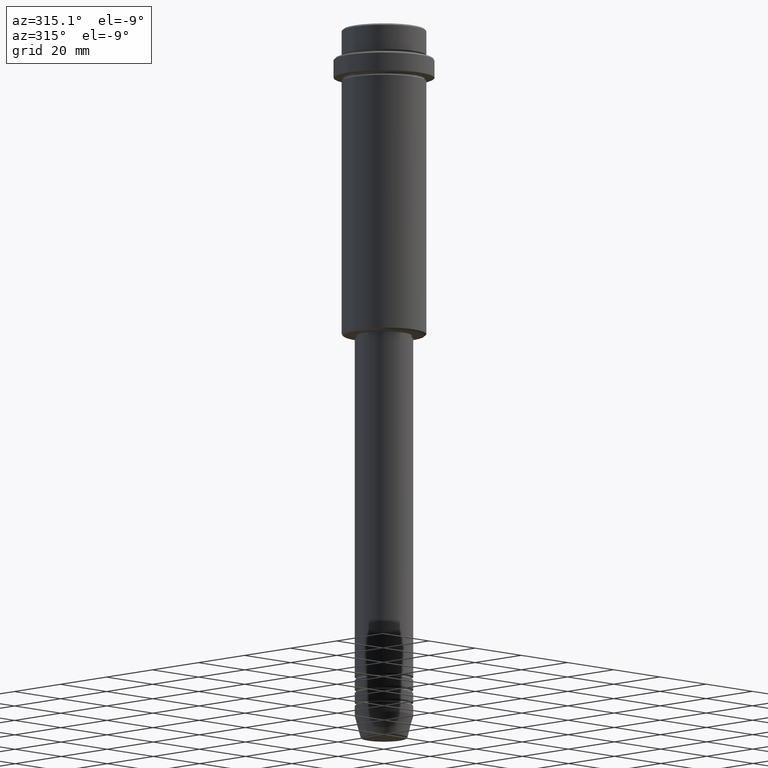
[diagram: clean part render]
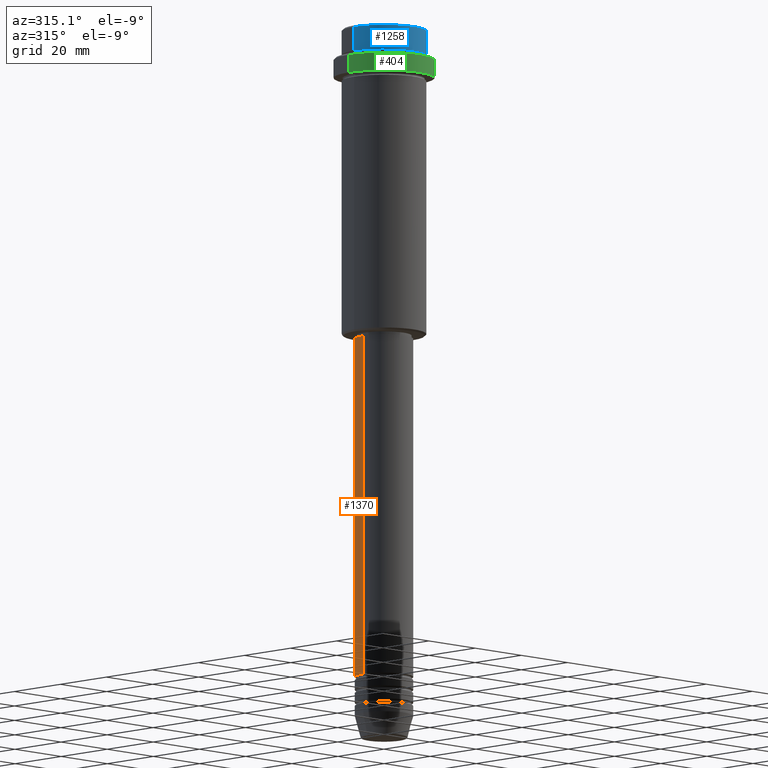
[diagram: same view with three faces highlighted in distinct colors, each labeled with its STEP entity id]
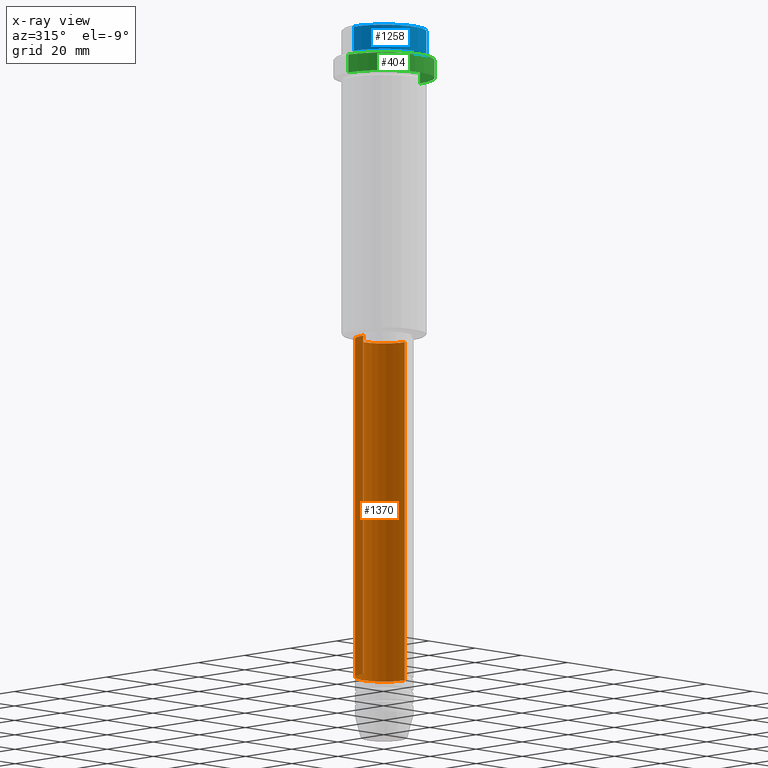
[diagram: x-ray of the same camera — body ghosted, the three highlighted faces saturated]
A machine part, auxiliary view with three faces highlighted in distinct colors.
The next image is the same camera in x-ray (body ghosted, the three faces saturated) — at least one of them is partly hidden behind the body in this view.
Their STEP definitions:

[orange] entity #1370 — the highlighted cylindrical surface (edge-blend (fillet) strip) has radius 9 mm, axis along (-0, -0, 1).
#2 = DIRECTION ( 'NONE',  ( -0.000000000000000000, -0.000000000000000000, 1.000000000000000000 ) ) ;
#33 = CIRCLE ( 'NONE', #165, 9.000000000000000000 ) ;
#70 = DIRECTION ( 'NONE',  ( 1.000000000000000000, 0.000000000000000000, 0.000000000000000000 ) ) ;
#121 = CARTESIAN_POINT ( 'NONE',  ( -9.000000000000000000, 1.102182119232617714E-15, -200.9999999999998579 ) ) ;
#130 = ORIENTED_EDGE ( 'NONE', *, *, #1390, .T. ) ;
#134 = ORIENTED_EDGE ( 'NONE', *, *, #992, .F. ) ;
#165 = AXIS2_PLACEMENT_3D ( 'NONE', #357, #2, #1332 ) ;
#185 = CARTESIAN_POINT ( 'NONE',  ( -9.000000000000001776, 1.102182119232617911E-15, -95.99999999999997158 ) ) ;
#188 = EDGE_CURVE ( 'NONE', #1054, #1299, #388, .T. ) ;
#193 = DIRECTION ( 'NONE',  ( -0.000000000000000000, -0.000000000000000000, 1.000000000000000000 ) ) ;
#281 = CARTESIAN_POINT ( 'NONE',  ( 0.000000000000000000, 0.000000000000000000, -95.99999999999997158 ) ) ;
#350 = CARTESIAN_POINT ( 'NONE',  ( 9.000000000000000000, 0.000000000000000000, -200.9999999999998579 ) ) ;
#356 = DIRECTION ( 'NONE',  ( -0.000000000000000000, -0.000000000000000000, 1.000000000000000000 ) ) ;
#357 = CARTESIAN_POINT ( 'NONE',  ( 0.000000000000000000, 0.000000000000000000, -200.9999999999998579 ) ) ;
#388 = LINE ( 'NONE', #608, #568 ) ;
#458 = FACE_OUTER_BOUND ( 'NONE', #683, .T. ) ;
#555 = ORIENTED_EDGE ( 'NONE', *, *, #834, .F. ) ;
#559 = CYLINDRICAL_SURFACE ( 'NONE', #600, 9.000000000000001776 ) ;
#568 = VECTOR ( 'NONE', #356, 1000.000000000000000 ) ;
#600 = AXIS2_PLACEMENT_3D ( 'NONE', #689, #1339, #1201 ) ;
#608 = CARTESIAN_POINT ( 'NONE',  ( -9.000000000000001776, 1.102182119232617911E-15, 0.000000000000000000 ) ) ;
#667 = VECTOR ( 'NONE', #962, 1000.000000000000000 ) ;
#683 = EDGE_LOOP ( 'NONE', ( #130, #1261, #555, #134 ) ) ;
#689 = CARTESIAN_POINT ( 'NONE',  ( 0.000000000000000000, 0.000000000000000000, 0.000000000000000000 ) ) ;
#739 = CIRCLE ( 'NONE', #1075, 9.000000000000001776 ) ;
#834 = EDGE_CURVE ( 'NONE', #987, #1299, #739, .T. ) ;
#882 = CARTESIAN_POINT ( 'NONE',  ( 9.000000000000001776, 0.000000000000000000, 0.000000000000000000 ) ) ;
#962 = DIRECTION ( 'NONE',  ( -0.000000000000000000, -0.000000000000000000, 1.000000000000000000 ) ) ;
#987 = VERTEX_POINT ( 'NONE', #994 ) ;
#992 = EDGE_CURVE ( 'NONE', #1403, #987, #1324, .T. ) ;
#994 = CARTESIAN_POINT ( 'NONE',  ( 9.000000000000001776, 0.000000000000000000, -95.99999999999997158 ) ) ;
#1054 = VERTEX_POINT ( 'NONE', #121 ) ;
#1075 = AXIS2_PLACEMENT_3D ( 'NONE', #281, #193, #70 ) ;
#1201 = DIRECTION ( 'NONE',  ( 1.000000000000000000, 0.000000000000000000, 0.000000000000000000 ) ) ;
#1261 = ORIENTED_EDGE ( 'NONE', *, *, #188, .T. ) ;
#1299 = VERTEX_POINT ( 'NONE', #185 ) ;
#1324 = LINE ( 'NONE', #882, #667 ) ;
#1332 = DIRECTION ( 'NONE',  ( 1.000000000000000000, 0.000000000000000000, 0.000000000000000000 ) ) ;
#1339 = DIRECTION ( 'NONE',  ( -0.000000000000000000, -0.000000000000000000, 1.000000000000000000 ) ) ;
#1370 = ADVANCED_FACE ( 'NONE', ( #458 ), #559, .T. ) ;
#1390 = EDGE_CURVE ( 'NONE', #1403, #1054, #33, .T. ) ;
#1403 = VERTEX_POINT ( 'NONE', #350 ) ;

[blue] entity #1258 — the highlighted cylindrical surface (partial cylindrical patch) has radius 13 mm, axis along (-0, -0, 1).
#5 = CIRCLE ( 'NONE', #644, 12.99999999999999822 ) ;
#23 = DIRECTION ( 'NONE',  ( 1.000000000000000000, 0.000000000000000000, 0.000000000000000000 ) ) ;
#44 = CARTESIAN_POINT ( 'NONE',  ( 0.000000000000000000, 0.000000000000000000, -7.999999999999998224 ) ) ;
#220 = DIRECTION ( 'NONE',  ( 0.000000000000000000, 0.000000000000000000, -1.000000000000000000 ) ) ;
#227 = AXIS2_PLACEMENT_3D ( 'NONE', #765, #290, #1168 ) ;
#252 = VECTOR ( 'NONE', #749, 1000.000000000000000 ) ;
#263 = ORIENTED_EDGE ( 'NONE', *, *, #605, .T. ) ;
#273 = LINE ( 'NONE', #811, #955 ) ;
#280 = VERTEX_POINT ( 'NONE', #1244 ) ;
#290 = DIRECTION ( 'NONE',  ( -0.000000000000000000, -0.000000000000000000, 1.000000000000000000 ) ) ;
#311 = CARTESIAN_POINT ( 'NONE',  ( 12.99999999999999822, 0.000000000000000000, -0.4999999999999761302 ) ) ;
#420 = CARTESIAN_POINT ( 'NONE',  ( -12.99999999999999822, 1.592040838891558898E-15, 0.000000000000000000 ) ) ;
#425 = FACE_OUTER_BOUND ( 'NONE', #1180, .T. ) ;
#532 = EDGE_CURVE ( 'NONE', #588, #1035, #1349, .T. ) ;
#556 = CARTESIAN_POINT ( 'NONE',  ( -12.99999999999999822, 1.592040838891558898E-15, -0.4999999999999761302 ) ) ;
#576 = ORIENTED_EDGE ( 'NONE', *, *, #532, .T. ) ;
#585 = DIRECTION ( 'NONE',  ( -0.000000000000000000, -0.000000000000000000, 1.000000000000000000 ) ) ;
#588 = VERTEX_POINT ( 'NONE', #311 ) ;
#605 = EDGE_CURVE ( 'NONE', #606, #588, #273, .T. ) ;
#606 = VERTEX_POINT ( 'NONE', #711 ) ;
#623 = EDGE_CURVE ( 'NONE', #280, #606, #5, .T. ) ;
#634 = CYLINDRICAL_SURFACE ( 'NONE', #227, 12.99999999999999822 ) ;
#644 = AXIS2_PLACEMENT_3D ( 'NONE', #44, #585, #920 ) ;
#711 = CARTESIAN_POINT ( 'NONE',  ( 12.99999999999999822, 0.000000000000000000, -7.999999999999998224 ) ) ;
#738 = AXIS2_PLACEMENT_3D ( 'NONE', #1328, #220, #23 ) ;
#749 = DIRECTION ( 'NONE',  ( -0.000000000000000000, -0.000000000000000000, 1.000000000000000000 ) ) ;
#765 = CARTESIAN_POINT ( 'NONE',  ( 0.000000000000000000, 0.000000000000000000, 0.000000000000000000 ) ) ;
#811 = CARTESIAN_POINT ( 'NONE',  ( 12.99999999999999822, 0.000000000000000000, 0.000000000000000000 ) ) ;
#844 = LINE ( 'NONE', #420, #252 ) ;
#902 = DIRECTION ( 'NONE',  ( -0.000000000000000000, -0.000000000000000000, 1.000000000000000000 ) ) ;
#920 = DIRECTION ( 'NONE',  ( 1.000000000000000000, 0.000000000000000000, 0.000000000000000000 ) ) ;
#955 = VECTOR ( 'NONE', #902, 1000.000000000000000 ) ;
#1035 = VERTEX_POINT ( 'NONE', #556 ) ;
#1168 = DIRECTION ( 'NONE',  ( 1.000000000000000000, 0.000000000000000000, 0.000000000000000000 ) ) ;
#1180 = EDGE_LOOP ( 'NONE', ( #1186, #1345, #263, #576 ) ) ;
#1186 = ORIENTED_EDGE ( 'NONE', *, *, #1317, .F. ) ;
#1244 = CARTESIAN_POINT ( 'NONE',  ( -12.99999999999999822, 1.592040838891558898E-15, -7.999999999999998224 ) ) ;
#1258 = ADVANCED_FACE ( 'NONE', ( #425 ), #634, .T. ) ;
#1317 = EDGE_CURVE ( 'NONE', #280, #1035, #844, .T. ) ;
#1328 = CARTESIAN_POINT ( 'NONE',  ( 0.000000000000000000, 0.000000000000000000, -0.4999999999999761302 ) ) ;
#1345 = ORIENTED_EDGE ( 'NONE', *, *, #623, .T. ) ;
#1349 = CIRCLE ( 'NONE', #738, 12.99999999999999822 ) ;

[green] entity #404 — the highlighted cylindrical surface (partial cylindrical patch) has radius 15.5 mm, axis along (-0, -0, 1).
#50 = CIRCLE ( 'NONE', #845, 15.50000000000000000 ) ;
#52 = AXIS2_PLACEMENT_3D ( 'NONE', #409, #174, #416 ) ;
#83 = CARTESIAN_POINT ( 'NONE',  ( 15.50000000000000000, 0.000000000000000000, -15.00000000000000000 ) ) ;
#104 = CARTESIAN_POINT ( 'NONE',  ( 15.50000000000000000, 0.000000000000000000, -9.500000000000039080 ) ) ;
#110 = DIRECTION ( 'NONE',  ( 1.000000000000000000, 0.000000000000000000, 0.000000000000000000 ) ) ;
#117 = ORIENTED_EDGE ( 'NONE', *, *, #1225, .T. ) ;
#145 = VERTEX_POINT ( 'NONE', #1152 ) ;
#148 = DIRECTION ( 'NONE',  ( -0.000000000000000000, -0.000000000000000000, 1.000000000000000000 ) ) ;
#162 = VECTOR ( 'NONE', #632, 1000.000000000000000 ) ;
#171 = VERTEX_POINT ( 'NONE', #260 ) ;
#174 = DIRECTION ( 'NONE',  ( -0.000000000000000000, -0.000000000000000000, 1.000000000000000000 ) ) ;
#218 = EDGE_CURVE ( 'NONE', #1231, #171, #50, .T. ) ;
#251 = LINE ( 'NONE', #1009, #437 ) ;
#253 = DIRECTION ( 'NONE',  ( 1.000000000000000000, 0.000000000000000000, 0.000000000000000000 ) ) ;
#260 = CARTESIAN_POINT ( 'NONE',  ( -15.50000000000000000, 1.898202538678397557E-15, -9.500000000000039080 ) ) ;
#276 = AXIS2_PLACEMENT_3D ( 'NONE', #756, #318, #110 ) ;
#318 = DIRECTION ( 'NONE',  ( -0.000000000000000000, -0.000000000000000000, 1.000000000000000000 ) ) ;
#348 = EDGE_CURVE ( 'NONE', #843, #1231, #742, .T. ) ;
#404 = ADVANCED_FACE ( 'NONE', ( #535 ), #1276, .T. ) ;
#407 = ORIENTED_EDGE ( 'NONE', *, *, #746, .F. ) ;
#409 = CARTESIAN_POINT ( 'NONE',  ( 0.000000000000000000, 0.000000000000000000, 0.000000000000000000 ) ) ;
#416 = DIRECTION ( 'NONE',  ( 1.000000000000000000, 0.000000000000000000, 0.000000000000000000 ) ) ;
#437 = VECTOR ( 'NONE', #148, 1000.000000000000000 ) ;
#535 = FACE_OUTER_BOUND ( 'NONE', #538, .T. ) ;
#538 = EDGE_LOOP ( 'NONE', ( #407, #117, #1376, #1167 ) ) ;
#632 = DIRECTION ( 'NONE',  ( -0.000000000000000000, -0.000000000000000000, 1.000000000000000000 ) ) ;
#742 = LINE ( 'NONE', #1173, #162 ) ;
#746 = EDGE_CURVE ( 'NONE', #145, #171, #251, .T. ) ;
#756 = CARTESIAN_POINT ( 'NONE',  ( 0.000000000000000000, 0.000000000000000000, -15.00000000000000000 ) ) ;
#819 = DIRECTION ( 'NONE',  ( 0.000000000000000000, 0.000000000000000000, -1.000000000000000000 ) ) ;
#829 = CIRCLE ( 'NONE', #276, 15.50000000000000000 ) ;
#843 = VERTEX_POINT ( 'NONE', #83 ) ;
#845 = AXIS2_PLACEMENT_3D ( 'NONE', #1044, #819, #253 ) ;
#1009 = CARTESIAN_POINT ( 'NONE',  ( -15.50000000000000000, 1.898202538678397557E-15, 0.000000000000000000 ) ) ;
#1044 = CARTESIAN_POINT ( 'NONE',  ( 0.000000000000000000, 0.000000000000000000, -9.500000000000039080 ) ) ;
#1152 = CARTESIAN_POINT ( 'NONE',  ( -15.50000000000000000, 1.898202538678397557E-15, -15.00000000000000000 ) ) ;
#1167 = ORIENTED_EDGE ( 'NONE', *, *, #218, .T. ) ;
#1173 = CARTESIAN_POINT ( 'NONE',  ( 15.50000000000000000, 0.000000000000000000, 0.000000000000000000 ) ) ;
#1225 = EDGE_CURVE ( 'NONE', #145, #843, #829, .T. ) ;
#1231 = VERTEX_POINT ( 'NONE', #104 ) ;
#1276 = CYLINDRICAL_SURFACE ( 'NONE', #52, 15.50000000000000000 ) ;
#1376 = ORIENTED_EDGE ( 'NONE', *, *, #348, .T. ) ;